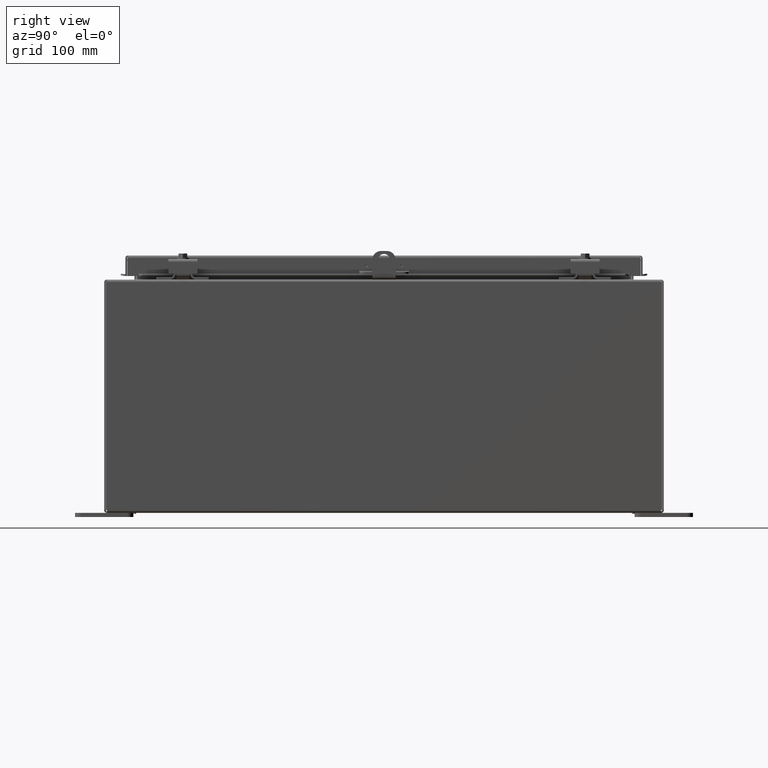
[diagram: clean part render]
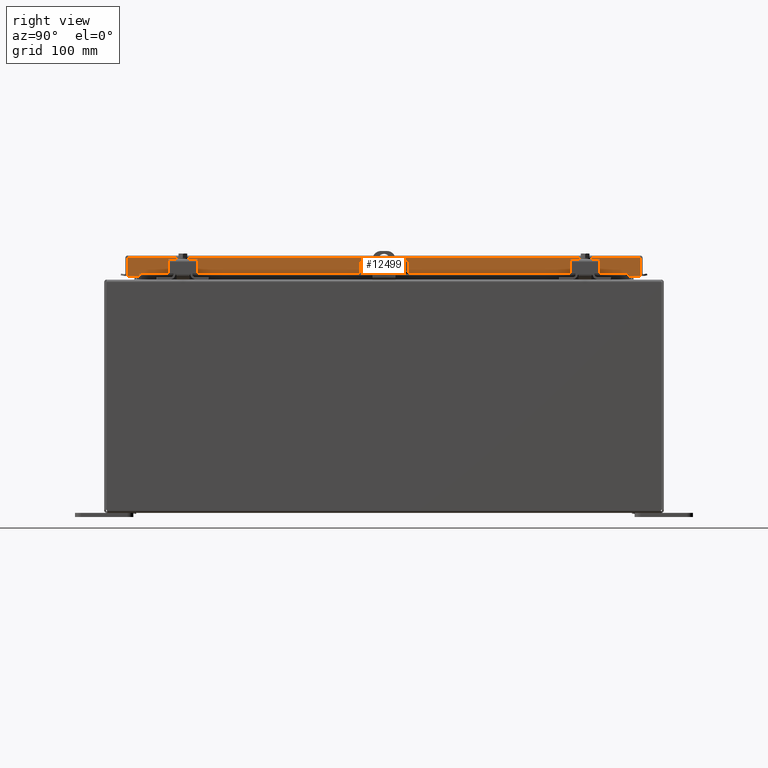
[diagram: same view with one face highlighted and labeled with its STEP entity id]
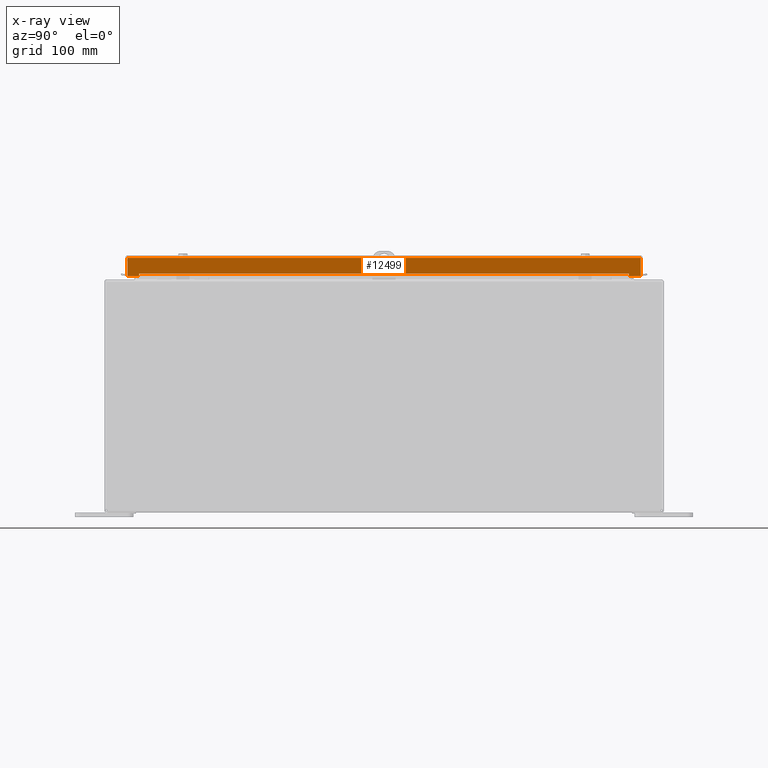
[diagram: x-ray of the same camera — body ghosted, the highlighted face saturated]
A machine part, right view. The second image highlights one B-rep face of the part: STEP entity #12499.
The next image is the same camera in x-ray: the body ghosted, the highlighted face saturated — about 0% of this face is hidden behind the body in this view.
In plain terms, the highlighted planar face has unit normal (-1, -0, -0).
Its self-contained STEP definition (entity closure, byte-faithful):
#10558=CARTESIAN_POINT('',(5.187499999999997,-0.812500000000001,0.497500000000001));
#10559=VERTEX_POINT('',#10558);
#10566=CARTESIAN_POINT('',(5.187499999999997,-0.812500000000001,0.434500000000001));
#10567=VERTEX_POINT('',#10566);
#10568=CARTESIAN_POINT('',(5.187499999999998,-0.812500000000001,0.434500000000001));
#10569=DIRECTION('',(0.0,0.0,1.0));
#10570=VECTOR('',#10569,0.063);
#10571=LINE('',#10568,#10570);
#10572=EDGE_CURVE('',#10567,#10559,#10571,.T.);
#10598=CARTESIAN_POINT('',(5.187499999999997,-0.687500000000001,0.434500000000001));
#10599=VERTEX_POINT('',#10598);
#10600=CARTESIAN_POINT('',(5.187499999999998,-0.750000000000001,0.434500000000001));
#10601=DIRECTION('',(-1.0,0.0,0.0));
#10602=DIRECTION('',(0.0,-1.0,0.0));
#10603=AXIS2_PLACEMENT_3D('',#10600,#10601,#10602);
#10604=CIRCLE('',#10603,0.0625);
#10605=EDGE_CURVE('',#10599,#10567,#10604,.T.);
#10630=CARTESIAN_POINT('',(5.187499999999997,-0.687500000000001,0.497500000000001));
#10631=VERTEX_POINT('',#10630);
#10632=CARTESIAN_POINT('',(5.187499999999997,-0.687500000000001,0.497500000000001));
#10633=DIRECTION('',(0.0,0.0,-1.0));
#10634=VECTOR('',#10633,0.063);
#10635=LINE('',#10632,#10634);
#10636=EDGE_CURVE('',#10631,#10599,#10635,.T.);
#10660=CARTESIAN_POINT('',(5.187499999999997,-0.750000000000001,0.497500000000001));
#10661=DIRECTION('',(-1.0,0.0,0.0));
#10662=DIRECTION('',(0.0,1.0,0.0));
#10663=AXIS2_PLACEMENT_3D('',#10660,#10661,#10662);
#10664=CIRCLE('',#10663,0.0625);
#10665=EDGE_CURVE('',#10559,#10631,#10664,.T.);
#10698=CARTESIAN_POINT('',(5.187499999999997,0.687500000000001,0.497500000000002));
#10699=VERTEX_POINT('',#10698);
#10706=CARTESIAN_POINT('',(5.187499999999997,0.6875,0.434500000000002));
#10707=VERTEX_POINT('',#10706);
#10708=CARTESIAN_POINT('',(5.187499999999998,0.687500000000001,0.434500000000002));
#10709=DIRECTION('',(0.0,0.0,1.0));
#10710=VECTOR('',#10709,0.063);
#10711=LINE('',#10708,#10710);
#10712=EDGE_CURVE('',#10707,#10699,#10711,.T.);
#10738=CARTESIAN_POINT('',(5.187499999999997,0.8125,0.434500000000002));
#10739=VERTEX_POINT('',#10738);
#10740=CARTESIAN_POINT('',(5.187499999999998,0.75,0.434500000000002));
#10741=DIRECTION('',(-1.0,0.0,0.0));
#10742=DIRECTION('',(0.0,-1.0,0.0));
#10743=AXIS2_PLACEMENT_3D('',#10740,#10741,#10742);
#10744=CIRCLE('',#10743,0.0625);
#10745=EDGE_CURVE('',#10739,#10707,#10744,.T.);
#10770=CARTESIAN_POINT('',(5.187499999999997,0.8125,0.497500000000002));
#10771=VERTEX_POINT('',#10770);
#10772=CARTESIAN_POINT('',(5.187499999999997,0.8125,0.497500000000002));
#10773=DIRECTION('',(0.0,0.0,-1.0));
#10774=VECTOR('',#10773,0.063);
#10775=LINE('',#10772,#10774);
#10776=EDGE_CURVE('',#10771,#10739,#10775,.T.);
#10800=CARTESIAN_POINT('',(5.187499999999997,0.75,0.497500000000002));
#10801=DIRECTION('',(-1.0,0.0,0.0));
#10802=DIRECTION('',(0.0,1.0,0.0));
#10803=AXIS2_PLACEMENT_3D('',#10800,#10801,#10802);
#10804=CIRCLE('',#10803,0.0625);
#10805=EDGE_CURVE('',#10699,#10771,#10804,.T.);
#11540=CARTESIAN_POINT('',(5.187499999999995,10.508701456543962,0.769750000000002));
#11541=VERTEX_POINT('',#11540);
#11566=CARTESIAN_POINT('',(5.187499999999996,-10.508701456543958,0.769750000000002));
#11567=VERTEX_POINT('',#11566);
#11622=CARTESIAN_POINT('',(5.187499999999995,10.508701456543964,0.769750000000002));
#11623=DIRECTION('',(0.0,-1.0,0.0));
#11624=VECTOR('',#11623,21.017402913087921);
#11625=LINE('',#11622,#11624);
#11626=EDGE_CURVE('',#11541,#11567,#11625,.T.);
#12210=CARTESIAN_POINT('',(5.187499999999996,-10.508701456543958,0.769550000000002));
#12211=VERTEX_POINT('',#12210);
#12218=CARTESIAN_POINT('',(5.187499999999996,-10.508701456543958,0.769750000000002));
#12219=DIRECTION('',(0.0,0.0,-1.0));
#12220=VECTOR('',#12219,0.0002);
#12221=LINE('',#12218,#12220);
#12222=EDGE_CURVE('',#11567,#12211,#12221,.T.);
#12242=CARTESIAN_POINT('',(5.187499999999996,-10.508901456543958,0.875000000000002));
#12243=VERTEX_POINT('',#12242);
#12250=CARTESIAN_POINT('',(5.187499999999996,-10.508901456543958,0.769550000000002));
#12251=VERTEX_POINT('',#12250);
#12252=CARTESIAN_POINT('',(5.187499999999996,-10.508901456543958,0.769550000000002));
#12253=DIRECTION('',(0.0,0.0,1.0));
#12254=VECTOR('',#12253,0.10545);
#12255=LINE('',#12252,#12254);
#12256=EDGE_CURVE('',#12251,#12243,#12255,.T.);
#12279=CARTESIAN_POINT('',(5.187499999999996,-10.508701456543958,0.769550000000002));
#12280=DIRECTION('',(0.0,-1.0,0.0));
#12281=VECTOR('',#12280,0.0002);
#12282=LINE('',#12279,#12281);
#12283=EDGE_CURVE('',#12211,#12251,#12282,.T.);
#12369=CARTESIAN_POINT('',(5.187499999999995,10.508901456543962,0.769550000000002));
#12370=VERTEX_POINT('',#12369);
#12377=CARTESIAN_POINT('',(5.187499999999994,10.508901456543962,0.875000000000002));
#12378=VERTEX_POINT('',#12377);
#12379=CARTESIAN_POINT('',(5.187499999999993,10.508901456543962,0.875000000000002));
#12380=DIRECTION('',(0.0,0.0,-1.0));
#12381=VECTOR('',#12380,0.10545);
#12382=LINE('',#12379,#12381);
#12383=EDGE_CURVE('',#12378,#12370,#12382,.T.);
#12400=CARTESIAN_POINT('',(5.187499999999995,10.508701456543962,0.769550000000002));
#12401=VERTEX_POINT('',#12400);
#12402=CARTESIAN_POINT('',(5.187499999999995,10.508701456543962,0.769550000000002));
#12403=DIRECTION('',(0.0,0.0,1.0));
#12404=VECTOR('',#12403,0.0002);
#12405=LINE('',#12402,#12404);
#12406=EDGE_CURVE('',#12401,#11541,#12405,.T.);
#12425=CARTESIAN_POINT('',(5.187499999999996,10.508901456543963,0.769550000000002));
#12426=DIRECTION('',(0.0,-1.0,0.0));
#12427=VECTOR('',#12426,0.000200000000001);
#12428=LINE('',#12425,#12427);
#12429=EDGE_CURVE('',#12370,#12401,#12428,.T.);
#12435=CARTESIAN_POINT('',(5.187499999999998,3.070127E-016,0.440359072143924));
#12436=DIRECTION('',(-1.0,0.0,0.0));
#12437=DIRECTION('',(0.0,0.0,1.0));
#12438=AXIS2_PLACEMENT_3D('',#12435,#12436,#12437);
#12439=PLANE('',#12438);
#12440=ORIENTED_EDGE('',*,*,#12256,.T.);
#12441=CARTESIAN_POINT('',(5.187499999999996,-11.008701456543958,0.875000000000002));
#12442=VERTEX_POINT('',#12441);
#12443=CARTESIAN_POINT('',(5.187499999999996,-11.008701456543958,0.875000000000002));
#12444=DIRECTION('',(0.0,1.0,0.0));
#12445=VECTOR('',#12444,0.4998);
#12446=LINE('',#12443,#12445);
#12447=EDGE_CURVE('',#12442,#12243,#12446,.T.);
#12448=ORIENTED_EDGE('',*,*,#12447,.F.);
#12449=CARTESIAN_POINT('',(5.187500000000002,-11.008701456543958,0.105250000000001));
#12450=VERTEX_POINT('',#12449);
#12451=CARTESIAN_POINT('',(5.187500000000002,-11.008701456543958,0.105250000000001));
#12452=DIRECTION('',(0.0,0.0,1.0));
#12453=VECTOR('',#12452,0.76975);
#12454=LINE('',#12451,#12453);
#12455=EDGE_CURVE('',#12450,#12442,#12454,.T.);
#12456=ORIENTED_EDGE('',*,*,#12455,.F.);
#12457=CARTESIAN_POINT('',(5.1875,11.008701456543962,0.105250000000001));
#12458=VERTEX_POINT('',#12457);
#12459=CARTESIAN_POINT('',(5.187500000000002,-11.008701456543958,0.105250000000002));
#12460=DIRECTION('',(0.0,1.0,0.0));
#12461=VECTOR('',#12460,22.017402913087921);
#12462=LINE('',#12459,#12461);
#12463=EDGE_CURVE('',#12450,#12458,#12462,.T.);
#12464=ORIENTED_EDGE('',*,*,#12463,.T.);
#12465=CARTESIAN_POINT('',(5.187499999999994,11.008701456543962,0.875000000000002));
#12466=VERTEX_POINT('',#12465);
#12467=CARTESIAN_POINT('',(5.187499999999993,11.008701456543962,0.875000000000001));
#12468=DIRECTION('',(0.0,0.0,-1.0));
#12469=VECTOR('',#12468,0.76975);
#12470=LINE('',#12467,#12469);
#12471=EDGE_CURVE('',#12466,#12458,#12470,.T.);
#12472=ORIENTED_EDGE('',*,*,#12471,.F.);
#12473=CARTESIAN_POINT('',(5.187499999999994,10.508901456543962,0.875000000000002));
#12474=DIRECTION('',(0.0,1.0,0.0));
#12475=VECTOR('',#12474,0.4998);
#12476=LINE('',#12473,#12475);
#12477=EDGE_CURVE('',#12378,#12466,#12476,.T.);
#12478=ORIENTED_EDGE('',*,*,#12477,.F.);
#12479=ORIENTED_EDGE('',*,*,#12383,.T.);
#12480=ORIENTED_EDGE('',*,*,#12429,.T.);
#12481=ORIENTED_EDGE('',*,*,#12406,.T.);
#12482=ORIENTED_EDGE('',*,*,#11626,.T.);
#12483=ORIENTED_EDGE('',*,*,#12222,.T.);
#12484=ORIENTED_EDGE('',*,*,#12283,.T.);
#12485=EDGE_LOOP('',(#12440,#12448,#12456,#12464,#12472,#12478,#12479,#12480,#12481,#12482,#12483,#12484));
#12486=FACE_OUTER_BOUND('',#12485,.T.);
#12487=ORIENTED_EDGE('',*,*,#10572,.T.);
#12488=ORIENTED_EDGE('',*,*,#10665,.T.);
#12489=ORIENTED_EDGE('',*,*,#10636,.T.);
#12490=ORIENTED_EDGE('',*,*,#10605,.T.);
#12491=EDGE_LOOP('',(#12487,#12488,#12489,#12490));
#12492=FACE_BOUND('',#12491,.T.);
#12493=ORIENTED_EDGE('',*,*,#10712,.T.);
#12494=ORIENTED_EDGE('',*,*,#10805,.T.);
#12495=ORIENTED_EDGE('',*,*,#10776,.T.);
#12496=ORIENTED_EDGE('',*,*,#10745,.T.);
#12497=EDGE_LOOP('',(#12493,#12494,#12495,#12496));
#12498=FACE_BOUND('',#12497,.T.);
#12499=ADVANCED_FACE('',(#12486,#12492,#12498),#12439,.F.);